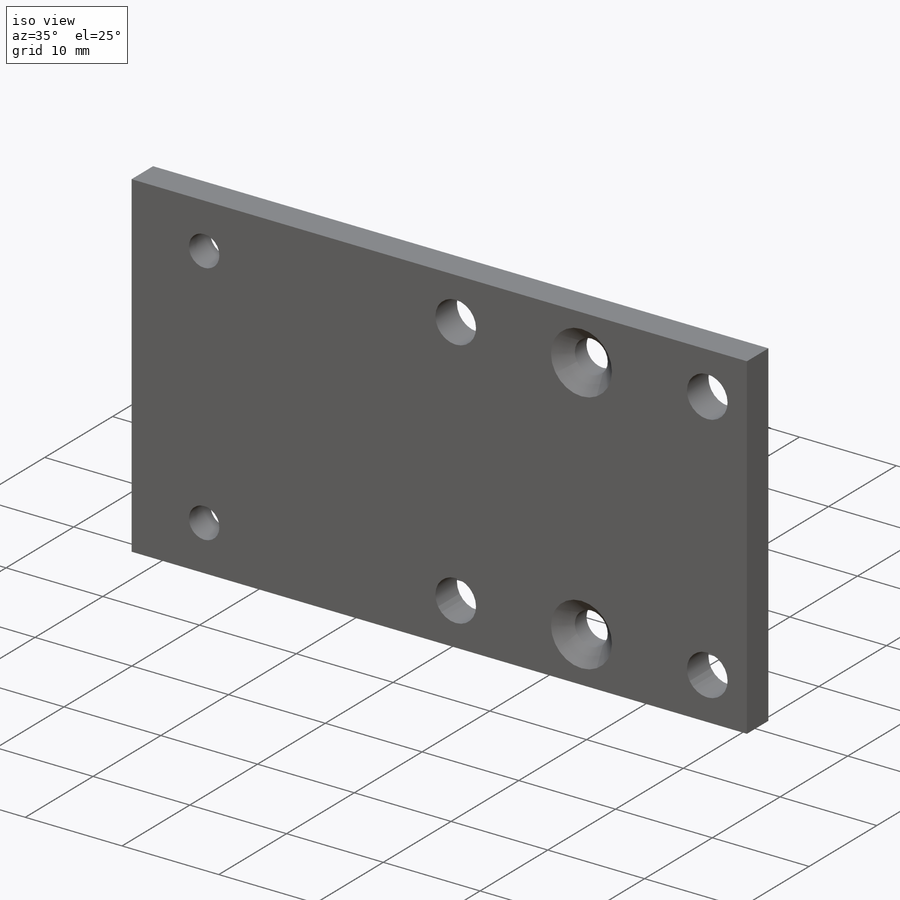
[diagram: iso view]
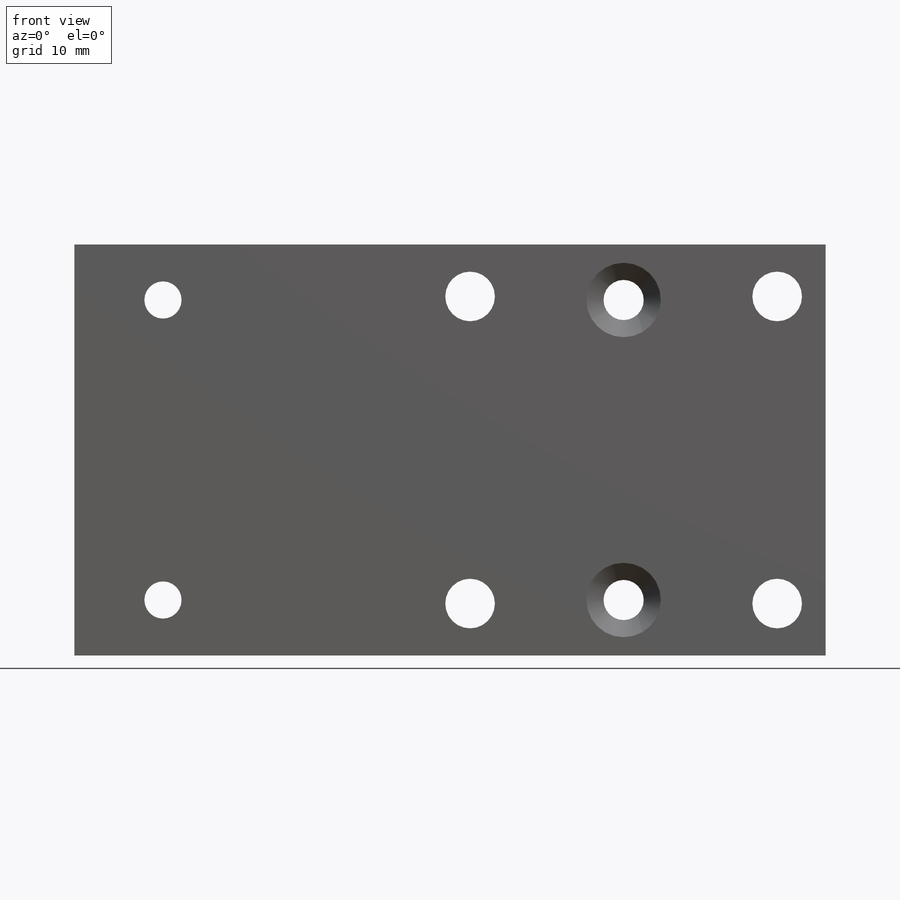
[diagram: front view]
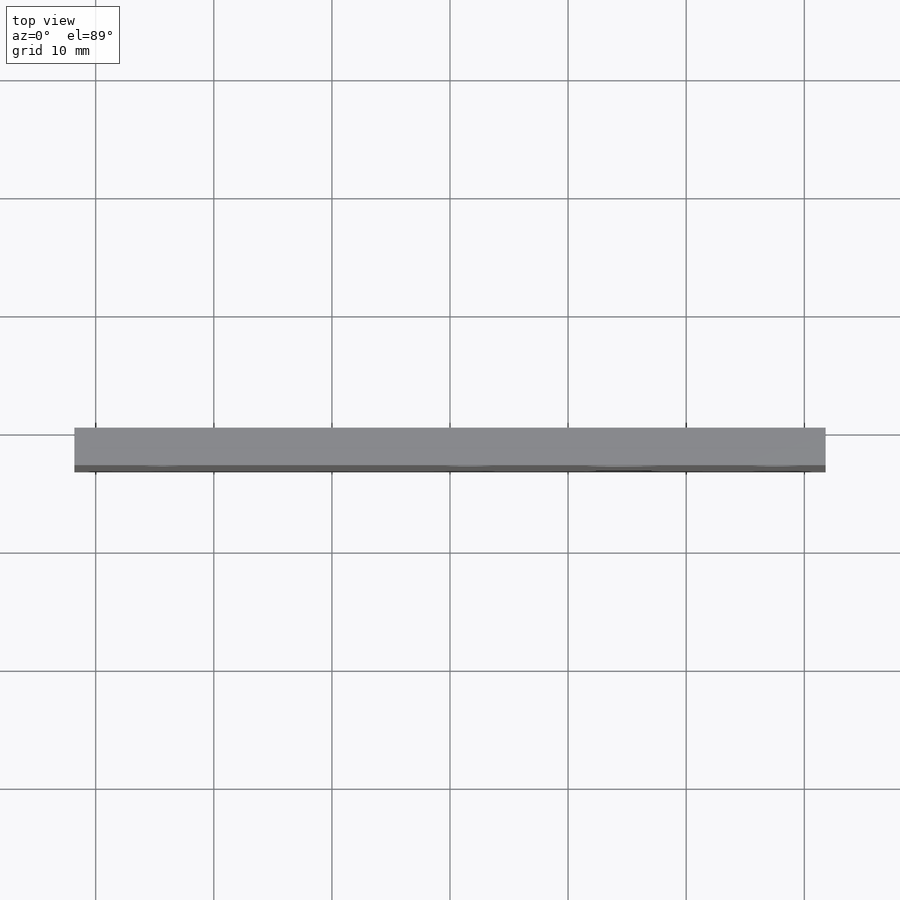
[diagram: top view]
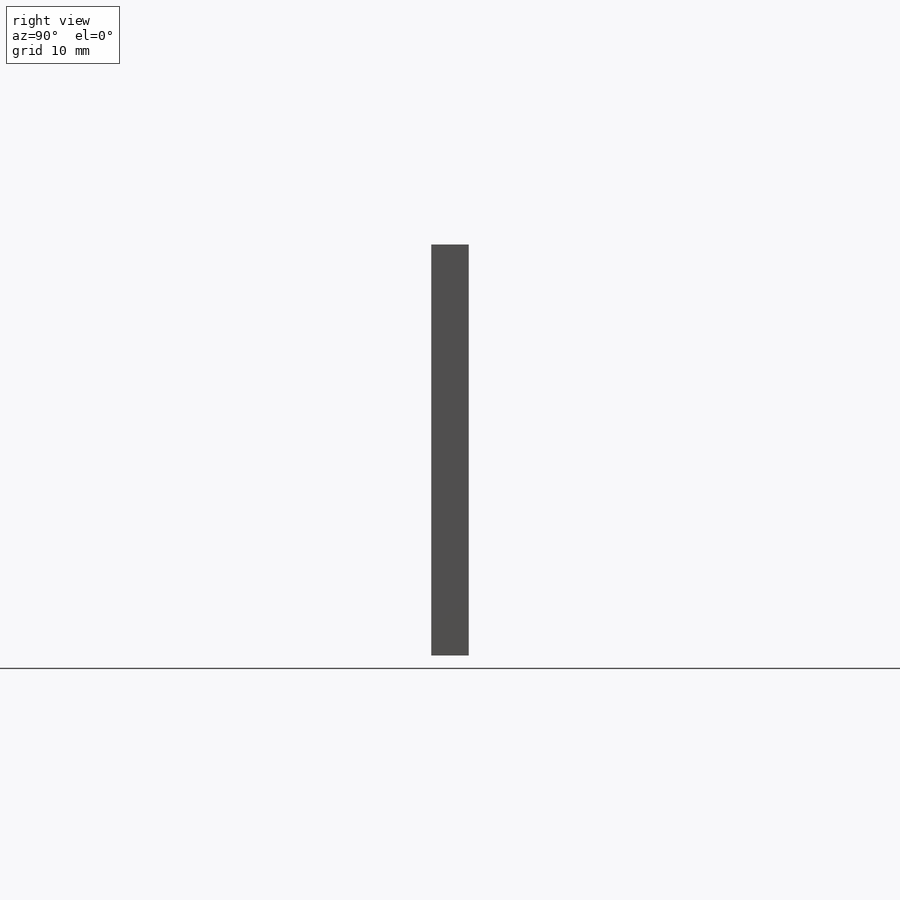
[diagram: right view]
SOLIDWORKS PART (.sldprt)
format: sldprt  version: not decoded by parser v0  size: 396,288 bytes
history: native  units: mm
features: sketch x6, cut_extrude x2, material x1, extrude x1, hole x1 (+13 scaffold rows collapsed)
feature tree (24):
  scaffold x13  (default folders/planes/origin — collapsed)
  material  "Material <not specified>"
  sketch  "Profile Sketch"  dims[D1=63.6mm D2=34.8mm]
  extrude  "Profile Extrude"  Depth=3.175mm
  sketch  "Mounting Hole Sketch"  dims[D2=3.15mm D3=3.15mm D4=3.15mm D5=3.15mm D1=7.5mm D6=25.4mm D7=39.0mm]
  cut_extrude  "Mounting Hole Cut"  [1 undecoded]
  sketch  "Inset Screw Sketch"  dims[D1=39.0mm]
  hole  "CSK for M3 Flat Head Machine Screw1"  Diameter=3.4mm Depth=3.175mm
  sketch  "3DSketch1"
  sketch  "Sketch2"  dims[hole-wizard template sketch: 59 standard entries collapsed; hole parameters above]
  sketch  "Carriage Guide Hole Sketch"  dims[D1=4.2mm D2=4.2mm D3=4.2mm D4=4.2mm D5=26.0mm D6=26.0mm D7=10.0mm]
  cut_extrude  "Carriage Guide Hole Cut"  [1 undecoded]
decode coverage: 7 of 10 modeling features carry decoded parameters
note: ~ marks probable driven/reference dimensions
note: 2 parameter values undecoded
note: suppression state not decoded; provenance and decode notes live in map.json
